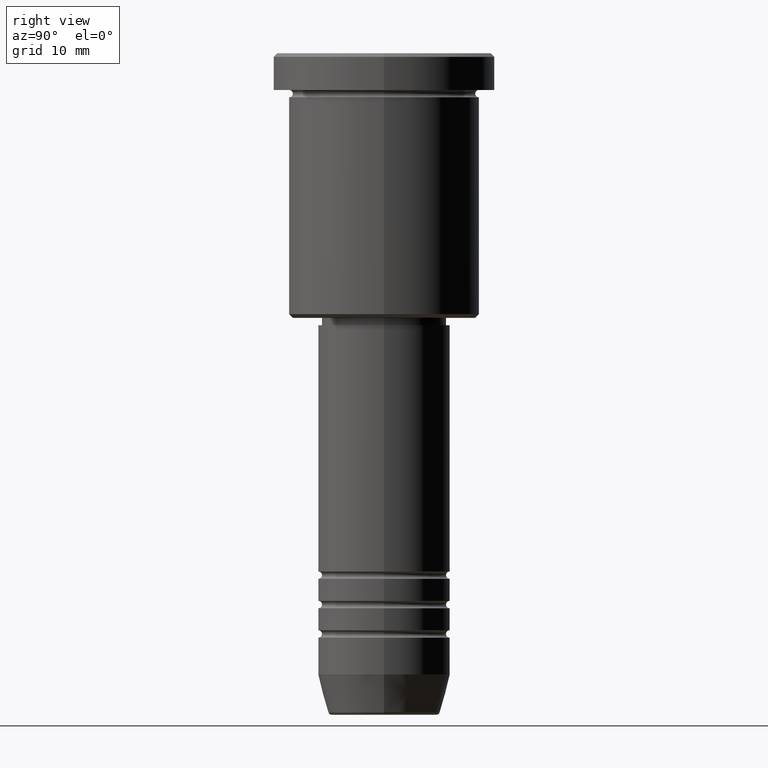
[diagram: clean part render]
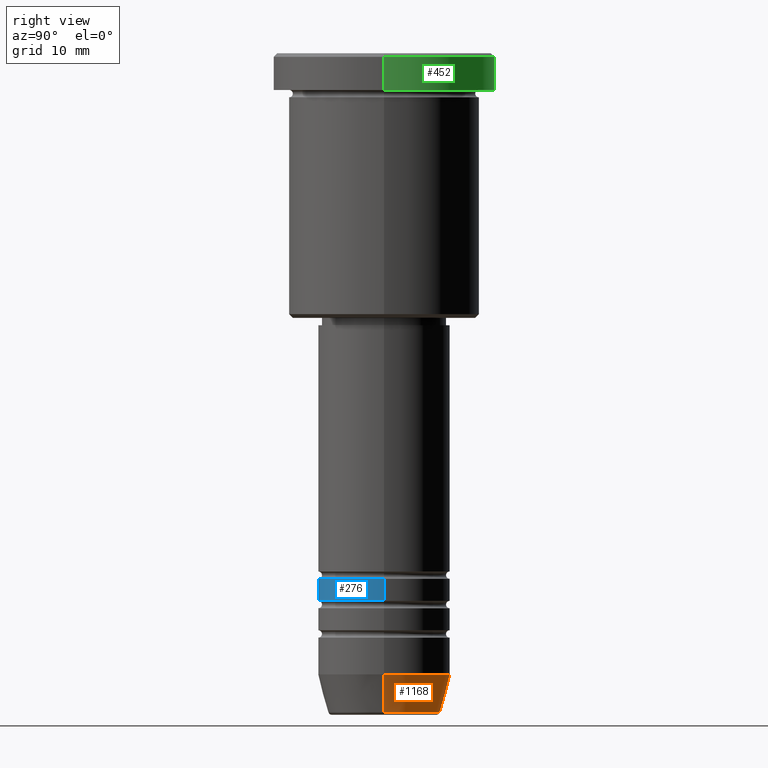
[diagram: same view with three faces highlighted in distinct colors, each labeled with its STEP entity id]
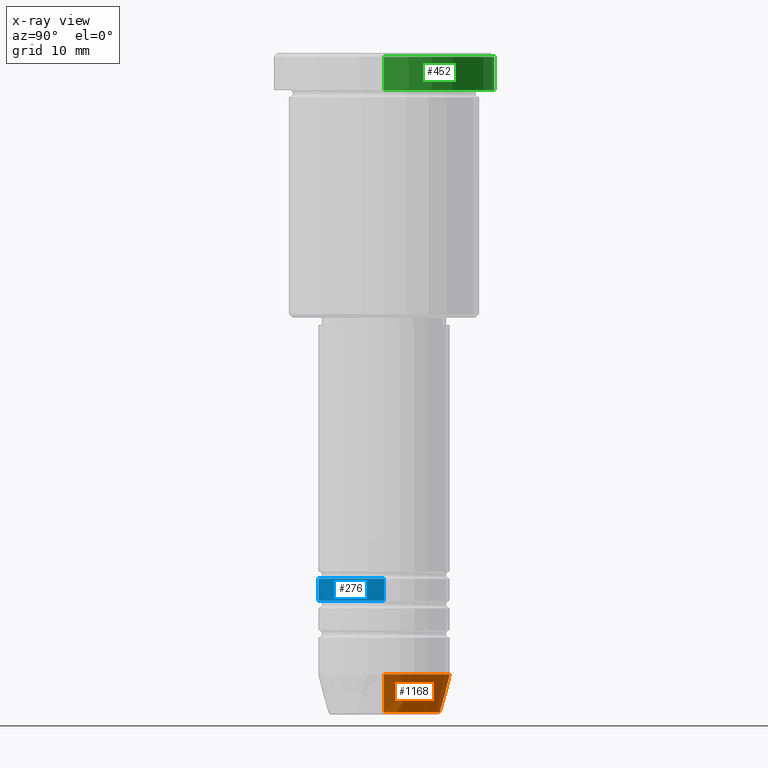
[diagram: x-ray of the same camera — body ghosted, the three highlighted faces saturated]
A machine part, right view with three faces highlighted in distinct colors.
The next image is the same camera in x-ray (body ghosted, the three faces saturated) — at least one of them is partly hidden behind the body in this view.
Their STEP definitions:

[orange] entity #1168 — the highlighted conical surface has half-angle 15 deg.
#77 = DIRECTION ( 'NONE',  ( 1.000000000000000000, 0.000000000000000000, 0.000000000000000000 ) ) ;
#91 = CIRCLE ( 'NONE', #1139, 7.625578860783879698 ) ;
#149 = EDGE_CURVE ( 'NONE', #620, #793, #91, .T. ) ;
#155 = CARTESIAN_POINT ( 'NONE',  ( 0.000000000000000000, 0.000000000000000000, -84.49999999999998579 ) ) ;
#169 = AXIS2_PLACEMENT_3D ( 'NONE', #742, #755, #736 ) ;
#177 = VERTEX_POINT ( 'NONE', #961 ) ;
#199 = CARTESIAN_POINT ( 'NONE',  ( -7.625578860783880586, 1.018023096791544096E-15, -89.62940952255124216 ) ) ;
#229 = VECTOR ( 'NONE', #1073, 1000.000000000000000 ) ;
#298 = FACE_OUTER_BOUND ( 'NONE', #1154, .T. ) ;
#301 = CARTESIAN_POINT ( 'NONE',  ( -9.000000000000001776, 1.102182119232617911E-15, -84.49999999999998579 ) ) ;
#329 = VERTEX_POINT ( 'NONE', #301 ) ;
#333 = ORIENTED_EDGE ( 'NONE', *, *, #149, .T. ) ;
#340 = DIRECTION ( 'NONE',  ( -0.000000000000000000, -0.000000000000000000, 1.000000000000000000 ) ) ;
#363 = CARTESIAN_POINT ( 'NONE',  ( -9.000000000000001776, 1.102182119232617911E-15, -84.49999999999998579 ) ) ;
#375 = DIRECTION ( 'NONE',  ( -0.2588190451025214056, 3.169619151431772953E-17, 0.9659258262890680902 ) ) ;
#388 = EDGE_CURVE ( 'NONE', #177, #329, #645, .T. ) ;
#392 = ORIENTED_EDGE ( 'NONE', *, *, #594, .T. ) ;
#393 = ORIENTED_EDGE ( 'NONE', *, *, #484, .F. ) ;
#484 = EDGE_CURVE ( 'NONE', #620, #177, #896, .T. ) ;
#522 = CARTESIAN_POINT ( 'NONE',  ( 9.000000000000001776, 0.000000000000000000, -84.49999999999998579 ) ) ;
#531 = CONICAL_SURFACE ( 'NONE', #169, 9.000000000000001776, 0.2617993877991501295 ) ;
#594 = EDGE_CURVE ( 'NONE', #793, #329, #1095, .T. ) ;
#620 = VERTEX_POINT ( 'NONE', #997 ) ;
#645 = CIRCLE ( 'NONE', #1121, 9.000000000000001776 ) ;
#672 = DIRECTION ( 'NONE',  ( 1.000000000000000000, 0.000000000000000000, 0.000000000000000000 ) ) ;
#736 = DIRECTION ( 'NONE',  ( 1.000000000000000000, 0.000000000000000000, 0.000000000000000000 ) ) ;
#742 = CARTESIAN_POINT ( 'NONE',  ( 0.000000000000000000, 0.000000000000000000, -84.49999999999998579 ) ) ;
#754 = ORIENTED_EDGE ( 'NONE', *, *, #388, .F. ) ;
#755 = DIRECTION ( 'NONE',  ( -0.000000000000000000, -0.000000000000000000, 1.000000000000000000 ) ) ;
#793 = VERTEX_POINT ( 'NONE', #199 ) ;
#867 = VECTOR ( 'NONE', #375, 1000.000000000000000 ) ;
#869 = CARTESIAN_POINT ( 'NONE',  ( 0.000000000000000000, 0.000000000000000000, -89.62940952255124216 ) ) ;
#896 = LINE ( 'NONE', #522, #229 ) ;
#961 = CARTESIAN_POINT ( 'NONE',  ( 9.000000000000001776, 0.000000000000000000, -84.49999999999998579 ) ) ;
#997 = CARTESIAN_POINT ( 'NONE',  ( 7.625578860783879698, 0.000000000000000000, -89.62940952255124216 ) ) ;
#1050 = DIRECTION ( 'NONE',  ( -0.000000000000000000, -0.000000000000000000, 1.000000000000000000 ) ) ;
#1073 = DIRECTION ( 'NONE',  ( 0.2588190451025214056, 0.000000000000000000, 0.9659258262890680902 ) ) ;
#1095 = LINE ( 'NONE', #363, #867 ) ;
#1121 = AXIS2_PLACEMENT_3D ( 'NONE', #155, #340, #77 ) ;
#1139 = AXIS2_PLACEMENT_3D ( 'NONE', #869, #1050, #672 ) ;
#1154 = EDGE_LOOP ( 'NONE', ( #333, #392, #754, #393 ) ) ;
#1168 = ADVANCED_FACE ( 'NONE', ( #298 ), #531, .T. ) ;

[blue] entity #276 — the highlighted cylindrical surface (partial cylindrical patch) has radius 9 mm, axis along (-0, -0, 1).
#32 = VECTOR ( 'NONE', #121, 1000.000000000000000 ) ;
#38 = CARTESIAN_POINT ( 'NONE',  ( 0.000000000000000000, 0.000000000000000000, -74.49999999999998579 ) ) ;
#84 = DIRECTION ( 'NONE',  ( -0.000000000000000000, -0.000000000000000000, 1.000000000000000000 ) ) ;
#121 = DIRECTION ( 'NONE',  ( -0.000000000000000000, -0.000000000000000000, 1.000000000000000000 ) ) ;
#124 = EDGE_CURVE ( 'NONE', #1162, #261, #459, .T. ) ;
#131 = CIRCLE ( 'NONE', #590, 9.000000000000001776 ) ;
#139 = CARTESIAN_POINT ( 'NONE',  ( 9.000000000000001776, 0.000000000000000000, -74.49999999999998579 ) ) ;
#141 = VERTEX_POINT ( 'NONE', #139 ) ;
#167 = VECTOR ( 'NONE', #527, 1000.000000000000000 ) ;
#238 = EDGE_CURVE ( 'NONE', #141, #261, #1067, .T. ) ;
#243 = CARTESIAN_POINT ( 'NONE',  ( -9.000000000000001776, 1.102182119232617911E-15, 0.000000000000000000 ) ) ;
#261 = VERTEX_POINT ( 'NONE', #578 ) ;
#262 = EDGE_CURVE ( 'NONE', #930, #141, #131, .T. ) ;
#276 = ADVANCED_FACE ( 'NONE', ( #1124 ), #938, .T. ) ;
#305 = EDGE_LOOP ( 'NONE', ( #712, #1088, #510, #826 ) ) ;
#384 = AXIS2_PLACEMENT_3D ( 'NONE', #589, #404, #752 ) ;
#390 = CARTESIAN_POINT ( 'NONE',  ( -9.000000000000000000, 1.102182119232617714E-15, -71.49999999999998579 ) ) ;
#404 = DIRECTION ( 'NONE',  ( -0.000000000000000000, -0.000000000000000000, 1.000000000000000000 ) ) ;
#459 = CIRCLE ( 'NONE', #715, 9.000000000000000000 ) ;
#489 = DIRECTION ( 'NONE',  ( 1.000000000000000000, 0.000000000000000000, 0.000000000000000000 ) ) ;
#510 = ORIENTED_EDGE ( 'NONE', *, *, #238, .T. ) ;
#527 = DIRECTION ( 'NONE',  ( -0.000000000000000000, -0.000000000000000000, 1.000000000000000000 ) ) ;
#578 = CARTESIAN_POINT ( 'NONE',  ( 9.000000000000000000, 0.000000000000000000, -71.49999999999998579 ) ) ;
#589 = CARTESIAN_POINT ( 'NONE',  ( 0.000000000000000000, 0.000000000000000000, 0.000000000000000000 ) ) ;
#590 = AXIS2_PLACEMENT_3D ( 'NONE', #38, #683, #830 ) ;
#683 = DIRECTION ( 'NONE',  ( -0.000000000000000000, -0.000000000000000000, 1.000000000000000000 ) ) ;
#704 = CARTESIAN_POINT ( 'NONE',  ( -9.000000000000001776, 1.102182119232617911E-15, -74.49999999999998579 ) ) ;
#712 = ORIENTED_EDGE ( 'NONE', *, *, #914, .F. ) ;
#715 = AXIS2_PLACEMENT_3D ( 'NONE', #1163, #84, #489 ) ;
#752 = DIRECTION ( 'NONE',  ( 1.000000000000000000, 0.000000000000000000, 0.000000000000000000 ) ) ;
#826 = ORIENTED_EDGE ( 'NONE', *, *, #124, .F. ) ;
#830 = DIRECTION ( 'NONE',  ( 1.000000000000000000, 0.000000000000000000, 0.000000000000000000 ) ) ;
#857 = LINE ( 'NONE', #243, #167 ) ;
#914 = EDGE_CURVE ( 'NONE', #930, #1162, #857, .T. ) ;
#930 = VERTEX_POINT ( 'NONE', #704 ) ;
#938 = CYLINDRICAL_SURFACE ( 'NONE', #384, 9.000000000000001776 ) ;
#979 = CARTESIAN_POINT ( 'NONE',  ( 9.000000000000001776, 0.000000000000000000, 0.000000000000000000 ) ) ;
#1067 = LINE ( 'NONE', #979, #32 ) ;
#1088 = ORIENTED_EDGE ( 'NONE', *, *, #262, .T. ) ;
#1124 = FACE_OUTER_BOUND ( 'NONE', #305, .T. ) ;
#1162 = VERTEX_POINT ( 'NONE', #390 ) ;
#1163 = CARTESIAN_POINT ( 'NONE',  ( 0.000000000000000000, 0.000000000000000000, -71.49999999999998579 ) ) ;

[green] entity #452 — the highlighted cylindrical surface (partial cylindrical patch) has radius 15 mm, axis along (-0, -0, 1).
#57 = DIRECTION ( 'NONE',  ( 1.000000000000000000, 0.000000000000000000, 0.000000000000000000 ) ) ;
#65 = VERTEX_POINT ( 'NONE', #294 ) ;
#125 = CARTESIAN_POINT ( 'NONE',  ( 15.00000000000000000, 0.000000000000000000, 0.000000000000000000 ) ) ;
#148 = DIRECTION ( 'NONE',  ( -0.000000000000000000, -0.000000000000000000, 1.000000000000000000 ) ) ;
#174 = VERTEX_POINT ( 'NONE', #612 ) ;
#181 = CARTESIAN_POINT ( 'NONE',  ( 15.00000000000000000, 0.000000000000000000, -4.999999999999999112 ) ) ;
#294 = CARTESIAN_POINT ( 'NONE',  ( 15.00000000000000000, 0.000000000000000000, -0.5000000000000108802 ) ) ;
#378 = LINE ( 'NONE', #990, #608 ) ;
#383 = CIRCLE ( 'NONE', #567, 15.00000000000000000 ) ;
#391 = DIRECTION ( 'NONE',  ( -0.000000000000000000, -0.000000000000000000, 1.000000000000000000 ) ) ;
#438 = DIRECTION ( 'NONE',  ( 0.000000000000000000, 0.000000000000000000, -1.000000000000000000 ) ) ;
#451 = VERTEX_POINT ( 'NONE', #528 ) ;
#452 = ADVANCED_FACE ( 'NONE', ( #981 ), #1167, .T. ) ;
#516 = CARTESIAN_POINT ( 'NONE',  ( 0.000000000000000000, 0.000000000000000000, -0.5000000000000108802 ) ) ;
#517 = DIRECTION ( 'NONE',  ( 1.000000000000000000, 0.000000000000000000, 0.000000000000000000 ) ) ;
#528 = CARTESIAN_POINT ( 'NONE',  ( -15.00000000000000000, 1.836970198721029589E-15, -0.5000000000000108802 ) ) ;
#567 = AXIS2_PLACEMENT_3D ( 'NONE', #516, #438, #872 ) ;
#571 = AXIS2_PLACEMENT_3D ( 'NONE', #689, #148, #517 ) ;
#598 = EDGE_LOOP ( 'NONE', ( #892, #765, #809, #933 ) ) ;
#608 = VECTOR ( 'NONE', #391, 1000.000000000000000 ) ;
#612 = CARTESIAN_POINT ( 'NONE',  ( -15.00000000000000000, 1.836970198721029589E-15, -4.999999999999999112 ) ) ;
#613 = DIRECTION ( 'NONE',  ( -0.000000000000000000, -0.000000000000000000, 1.000000000000000000 ) ) ;
#674 = LINE ( 'NONE', #125, #822 ) ;
#689 = CARTESIAN_POINT ( 'NONE',  ( 0.000000000000000000, 0.000000000000000000, 0.000000000000000000 ) ) ;
#692 = EDGE_CURVE ( 'NONE', #174, #451, #378, .T. ) ;
#765 = ORIENTED_EDGE ( 'NONE', *, *, #692, .T. ) ;
#775 = CARTESIAN_POINT ( 'NONE',  ( 0.000000000000000000, 0.000000000000000000, -4.999999999999999112 ) ) ;
#807 = EDGE_CURVE ( 'NONE', #1012, #65, #674, .T. ) ;
#809 = ORIENTED_EDGE ( 'NONE', *, *, #992, .T. ) ;
#822 = VECTOR ( 'NONE', #828, 1000.000000000000000 ) ;
#828 = DIRECTION ( 'NONE',  ( -0.000000000000000000, -0.000000000000000000, 1.000000000000000000 ) ) ;
#872 = DIRECTION ( 'NONE',  ( 1.000000000000000000, 0.000000000000000000, 0.000000000000000000 ) ) ;
#878 = EDGE_CURVE ( 'NONE', #1012, #174, #1136, .T. ) ;
#892 = ORIENTED_EDGE ( 'NONE', *, *, #878, .T. ) ;
#933 = ORIENTED_EDGE ( 'NONE', *, *, #807, .F. ) ;
#980 = AXIS2_PLACEMENT_3D ( 'NONE', #775, #613, #57 ) ;
#981 = FACE_OUTER_BOUND ( 'NONE', #598, .T. ) ;
#990 = CARTESIAN_POINT ( 'NONE',  ( -15.00000000000000000, 1.836970198721029589E-15, 0.000000000000000000 ) ) ;
#992 = EDGE_CURVE ( 'NONE', #451, #65, #383, .T. ) ;
#1012 = VERTEX_POINT ( 'NONE', #181 ) ;
#1136 = CIRCLE ( 'NONE', #980, 15.00000000000000000 ) ;
#1167 = CYLINDRICAL_SURFACE ( 'NONE', #571, 15.00000000000000000 ) ;